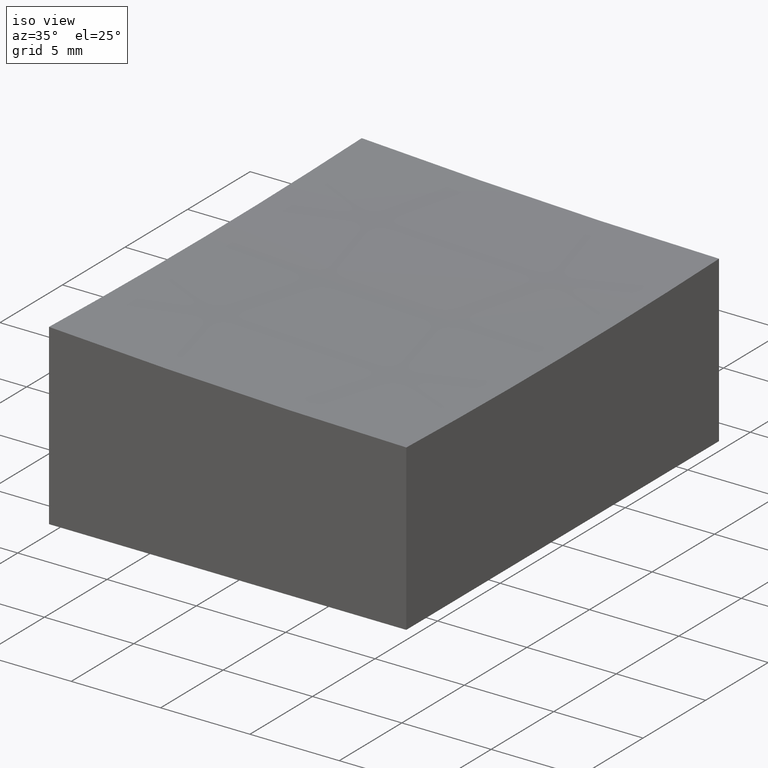
[diagram: clean part render]
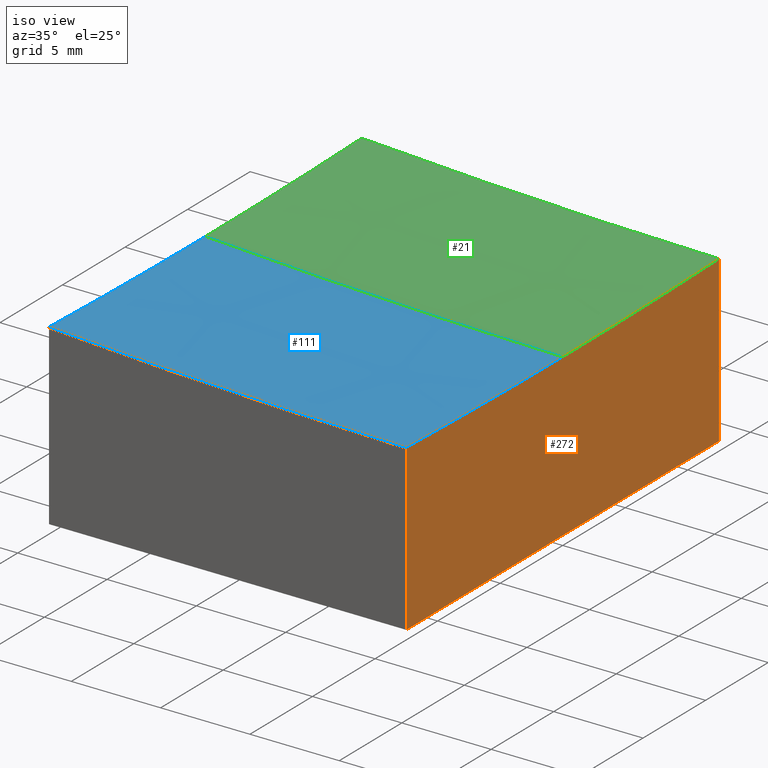
[diagram: same view with three faces highlighted in distinct colors, each labeled with its STEP entity id]
A machine part, iso view with three faces highlighted in distinct colors.
Their STEP definitions:

[orange] entity #272 — the highlighted planar face has unit normal (-1, 0, 0).
#4 = DIRECTION ( 'NONE',  ( -0.000000000000000000, -0.000000000000000000, -1.000000000000000000 ) ) ;
#7 = CARTESIAN_POINT ( 'NONE',  ( 10.00000000000000178, 12.50000000000000000, -10.00000000000000000 ) ) ;
#14 = ORIENTED_EDGE ( 'NONE', *, *, #164, .T. ) ;
#25 = DIRECTION ( 'NONE',  ( -1.000000000000000000, 0.000000000000000000, 0.000000000000000000 ) ) ;
#45 = DIRECTION ( 'NONE',  ( 0.000000000000000000, 0.000000000000000000, 1.000000000000000000 ) ) ;
#50 = CARTESIAN_POINT ( 'NONE',  ( 10.00000000000000178, -12.50000000000000000, 10.00000000000000000 ) ) ;
#53 = CARTESIAN_POINT ( 'NONE',  ( 10.00000000000000178, 0.000000000000000000, 399.0000000000000000 ) ) ;
#69 = DIRECTION ( 'NONE',  ( 0.000000000000000000, 0.000000000000000000, 1.000000000000000000 ) ) ;
#73 = EDGE_CURVE ( 'NONE', #267, #77, #173, .T. ) ;
#77 = VERTEX_POINT ( 'NONE', #7 ) ;
#80 = AXIS2_PLACEMENT_3D ( 'NONE', #140, #183, #69 ) ;
#98 = LINE ( 'NONE', #50, #126 ) ;
#101 = LINE ( 'NONE', #110, #276 ) ;
#110 = CARTESIAN_POINT ( 'NONE',  ( 10.00000000000000178, 12.50000000000000000, 10.00000000000000000 ) ) ;
#115 = ORIENTED_EDGE ( 'NONE', *, *, #73, .T. ) ;
#116 = CARTESIAN_POINT ( 'NONE',  ( 10.00000000000000178, 0.000000000000000000, 399.0000000000000000 ) ) ;
#117 = CARTESIAN_POINT ( 'NONE',  ( 10.00000000000000178, -12.50000000000000000, -0.7733733004237630659 ) ) ;
#122 = ORIENTED_EDGE ( 'NONE', *, *, #180, .T. ) ;
#126 = VECTOR ( 'NONE', #4, 1000.000000000000000 ) ;
#135 = FACE_OUTER_BOUND ( 'NONE', #153, .T. ) ;
#140 = CARTESIAN_POINT ( 'NONE',  ( 10.00000000000000178, -12.50000000000000000, 10.00000000000000000 ) ) ;
#144 = DIRECTION ( 'NONE',  ( 0.000000000000000000, 0.000000000000000000, 1.000000000000000000 ) ) ;
#151 = EDGE_CURVE ( 'NONE', #246, #77, #101, .T. ) ;
#153 = EDGE_LOOP ( 'NONE', ( #261, #14, #122, #245, #115 ) ) ;
#164 = EDGE_CURVE ( 'NONE', #246, #199, #169, .T. ) ;
#169 = CIRCLE ( 'NONE', #249, 399.9687487792014053 ) ;
#173 = LINE ( 'NONE', #256, #225 ) ;
#175 = VERTEX_POINT ( 'NONE', #117 ) ;
#180 = EDGE_CURVE ( 'NONE', #199, #175, #207, .T. ) ;
#183 = DIRECTION ( 'NONE',  ( -1.000000000000000000, 0.000000000000000000, 0.000000000000000000 ) ) ;
#199 = VERTEX_POINT ( 'NONE', #262 ) ;
#201 = DIRECTION ( 'NONE',  ( -1.000000000000000000, 0.000000000000000000, 0.000000000000000000 ) ) ;
#204 = DIRECTION ( 'NONE',  ( 0.000000000000000000, 1.000000000000000000, 0.000000000000000000 ) ) ;
#207 = CIRCLE ( 'NONE', #235, 399.9687487792014053 ) ;
#220 = DIRECTION ( 'NONE',  ( -0.000000000000000000, -0.000000000000000000, -1.000000000000000000 ) ) ;
#225 = VECTOR ( 'NONE', #204, 1000.000000000000000 ) ;
#235 = AXIS2_PLACEMENT_3D ( 'NONE', #53, #25, #45 ) ;
#236 = EDGE_CURVE ( 'NONE', #175, #267, #98, .T. ) ;
#239 = PLANE ( 'NONE',  #80 ) ;
#243 = CARTESIAN_POINT ( 'NONE',  ( 10.00000000000000178, -12.50000000000000000, -10.00000000000000000 ) ) ;
#245 = ORIENTED_EDGE ( 'NONE', *, *, #236, .T. ) ;
#246 = VERTEX_POINT ( 'NONE', #260 ) ;
#249 = AXIS2_PLACEMENT_3D ( 'NONE', #116, #201, #144 ) ;
#256 = CARTESIAN_POINT ( 'NONE',  ( 10.00000000000000178, -12.50000000000000000, -10.00000000000000000 ) ) ;
#260 = CARTESIAN_POINT ( 'NONE',  ( 10.00000000000000178, 12.50000000000000000, -0.7733733004237630659 ) ) ;
#261 = ORIENTED_EDGE ( 'NONE', *, *, #151, .F. ) ;
#262 = CARTESIAN_POINT ( 'NONE',  ( 10.00000000000000178, 0.000000000000000000, -0.9687487792014171095 ) ) ;
#267 = VERTEX_POINT ( 'NONE', #243 ) ;
#272 = ADVANCED_FACE ( 'NONE', ( #135 ), #239, .F. ) ;
#276 = VECTOR ( 'NONE', #220, 1000.000000000000000 ) ;

[blue] entity #111 — the highlighted spherical surface has radius 400 mm.
#2 = CARTESIAN_POINT ( 'NONE',  ( -9.999999999999996447, -12.50000000000000355, -0.02224248780913207213 ) ) ;
#11 = CARTESIAN_POINT ( 'NONE',  ( 15.00000000000005151, 0.000000000000000000, 399.0000000000000000 ) ) ;
#15 = CARTESIAN_POINT ( 'NONE',  ( -9.999999999999998224, 0.000000000000000000, 399.0000000000000000 ) ) ;
#24 = AXIS2_PLACEMENT_3D ( 'NONE', #224, #64, #233 ) ;
#25 = DIRECTION ( 'NONE',  ( -1.000000000000000000, 0.000000000000000000, 0.000000000000000000 ) ) ;
#27 = DIRECTION ( 'NONE',  ( 0.000000000000000000, -1.000000000000000000, 0.000000000000000000 ) ) ;
#32 = ORIENTED_EDGE ( 'NONE', *, *, #180, .F. ) ;
#45 = DIRECTION ( 'NONE',  ( 0.000000000000000000, 0.000000000000000000, 1.000000000000000000 ) ) ;
#49 = DIRECTION ( 'NONE',  ( -1.000000000000000000, 0.000000000000000000, 1.387778780781445676E-16 ) ) ;
#53 = CARTESIAN_POINT ( 'NONE',  ( 10.00000000000000178, 0.000000000000000000, 399.0000000000000000 ) ) ;
#54 = EDGE_CURVE ( 'NONE', #158, #223, #119, .T. ) ;
#61 = AXIS2_PLACEMENT_3D ( 'NONE', #11, #178, #49 ) ;
#64 = DIRECTION ( 'NONE',  ( -1.734723475976807094E-16, 1.000000000000000000, 0.000000000000000000 ) ) ;
#78 = DIRECTION ( 'NONE',  ( 1.000000000000000000, 0.000000000000000000, 0.000000000000000000 ) ) ;
#82 = EDGE_CURVE ( 'NONE', #223, #199, #125, .T. ) ;
#93 = AXIS2_PLACEMENT_3D ( 'NONE', #15, #78, #174 ) ;
#95 = ORIENTED_EDGE ( 'NONE', *, *, #82, .F. ) ;
#97 = EDGE_LOOP ( 'NONE', ( #95, #240, #196, #32 ) ) ;
#105 = FACE_OUTER_BOUND ( 'NONE', #97, .T. ) ;
#106 = EDGE_CURVE ( 'NONE', #175, #158, #149, .T. ) ;
#111 = ADVANCED_FACE ( 'NONE', ( #105 ), #132, .F. ) ;
#117 = CARTESIAN_POINT ( 'NONE',  ( 10.00000000000000178, -12.50000000000000000, -0.7733733004237630659 ) ) ;
#119 = CIRCLE ( 'NONE', #93, 399.2179855667827155 ) ;
#125 = CIRCLE ( 'NONE', #269, 399.9999999999999432 ) ;
#132 = SPHERICAL_SURFACE ( 'NONE', #61, 399.9999999999999432 ) ;
#149 = CIRCLE ( 'NONE', #24, 399.8046397929868476 ) ;
#154 = CARTESIAN_POINT ( 'NONE',  ( -9.999999999999996447, 0.000000000000000000, -0.2179855667827079735 ) ) ;
#158 = VERTEX_POINT ( 'NONE', #2 ) ;
#162 = DIRECTION ( 'NONE',  ( 0.000000000000000000, 0.000000000000000000, -1.000000000000000000 ) ) ;
#174 = DIRECTION ( 'NONE',  ( 0.000000000000000000, 0.000000000000000000, -1.000000000000000000 ) ) ;
#175 = VERTEX_POINT ( 'NONE', #117 ) ;
#178 = DIRECTION ( 'NONE',  ( 0.000000000000000000, 1.000000000000000000, -0.000000000000000000 ) ) ;
#180 = EDGE_CURVE ( 'NONE', #199, #175, #207, .T. ) ;
#182 = CARTESIAN_POINT ( 'NONE',  ( 15.00000000000005151, 0.000000000000000000, 399.0000000000000000 ) ) ;
#196 = ORIENTED_EDGE ( 'NONE', *, *, #106, .F. ) ;
#199 = VERTEX_POINT ( 'NONE', #262 ) ;
#207 = CIRCLE ( 'NONE', #235, 399.9687487792014053 ) ;
#223 = VERTEX_POINT ( 'NONE', #154 ) ;
#224 = CARTESIAN_POINT ( 'NONE',  ( 15.00000000000005329, -12.49999999999999822, 399.0000000000000000 ) ) ;
#233 = DIRECTION ( 'NONE',  ( -1.000000000000000000, -1.735571129814823690E-16, 0.000000000000000000 ) ) ;
#235 = AXIS2_PLACEMENT_3D ( 'NONE', #53, #25, #45 ) ;
#240 = ORIENTED_EDGE ( 'NONE', *, *, #54, .F. ) ;
#262 = CARTESIAN_POINT ( 'NONE',  ( 10.00000000000000178, 0.000000000000000000, -0.9687487792014171095 ) ) ;
#269 = AXIS2_PLACEMENT_3D ( 'NONE', #182, #27, #162 ) ;

[green] entity #21 — the highlighted spherical surface has radius 400 mm.
#21 = ADVANCED_FACE ( 'NONE', ( #33 ), #185, .F. ) ;
#27 = DIRECTION ( 'NONE',  ( 0.000000000000000000, -1.000000000000000000, 0.000000000000000000 ) ) ;
#30 = EDGE_CURVE ( 'NONE', #68, #246, #79, .T. ) ;
#33 = FACE_OUTER_BOUND ( 'NONE', #203, .T. ) ;
#48 = AXIS2_PLACEMENT_3D ( 'NONE', #137, #197, #142 ) ;
#68 = VERTEX_POINT ( 'NONE', #139 ) ;
#70 = ORIENTED_EDGE ( 'NONE', *, *, #164, .F. ) ;
#74 = DIRECTION ( 'NONE',  ( 0.000000000000000000, 1.000000000000000000, -0.000000000000000000 ) ) ;
#79 = CIRCLE ( 'NONE', #211, 399.8046397929868476 ) ;
#82 = EDGE_CURVE ( 'NONE', #223, #199, #125, .T. ) ;
#99 = DIRECTION ( 'NONE',  ( -1.000000000000000000, 0.000000000000000000, 1.387778780781445676E-16 ) ) ;
#113 = AXIS2_PLACEMENT_3D ( 'NONE', #242, #74, #99 ) ;
#116 = CARTESIAN_POINT ( 'NONE',  ( 10.00000000000000178, 0.000000000000000000, 399.0000000000000000 ) ) ;
#125 = CIRCLE ( 'NONE', #269, 399.9999999999999432 ) ;
#137 = CARTESIAN_POINT ( 'NONE',  ( -9.999999999999998224, 0.000000000000000000, 399.0000000000000000 ) ) ;
#139 = CARTESIAN_POINT ( 'NONE',  ( -10.00000000000000000, 12.49999999999999645, -0.02224248780913207213 ) ) ;
#141 = DIRECTION ( 'NONE',  ( 1.734723475976807094E-16, -1.000000000000000000, 0.000000000000000000 ) ) ;
#142 = DIRECTION ( 'NONE',  ( 0.000000000000000000, 0.000000000000000000, -1.000000000000000000 ) ) ;
#144 = DIRECTION ( 'NONE',  ( 0.000000000000000000, 0.000000000000000000, 1.000000000000000000 ) ) ;
#152 = CARTESIAN_POINT ( 'NONE',  ( 15.00000000000004974, 12.50000000000000178, 399.0000000000000000 ) ) ;
#154 = CARTESIAN_POINT ( 'NONE',  ( -9.999999999999996447, 0.000000000000000000, -0.2179855667827079735 ) ) ;
#162 = DIRECTION ( 'NONE',  ( 0.000000000000000000, 0.000000000000000000, -1.000000000000000000 ) ) ;
#164 = EDGE_CURVE ( 'NONE', #246, #199, #169, .T. ) ;
#169 = CIRCLE ( 'NONE', #249, 399.9687487792014053 ) ;
#179 = CIRCLE ( 'NONE', #48, 399.2179855667827155 ) ;
#182 = CARTESIAN_POINT ( 'NONE',  ( 15.00000000000005151, 0.000000000000000000, 399.0000000000000000 ) ) ;
#185 = SPHERICAL_SURFACE ( 'NONE', #113, 399.9999999999999432 ) ;
#197 = DIRECTION ( 'NONE',  ( 1.000000000000000000, 0.000000000000000000, 0.000000000000000000 ) ) ;
#199 = VERTEX_POINT ( 'NONE', #262 ) ;
#201 = DIRECTION ( 'NONE',  ( -1.000000000000000000, 0.000000000000000000, 0.000000000000000000 ) ) ;
#203 = EDGE_LOOP ( 'NONE', ( #227, #205, #70, #218 ) ) ;
#205 = ORIENTED_EDGE ( 'NONE', *, *, #82, .T. ) ;
#211 = AXIS2_PLACEMENT_3D ( 'NONE', #152, #141, #221 ) ;
#218 = ORIENTED_EDGE ( 'NONE', *, *, #30, .F. ) ;
#221 = DIRECTION ( 'NONE',  ( 1.000000000000000000, 1.735571129814823690E-16, 0.000000000000000000 ) ) ;
#223 = VERTEX_POINT ( 'NONE', #154 ) ;
#227 = ORIENTED_EDGE ( 'NONE', *, *, #228, .F. ) ;
#228 = EDGE_CURVE ( 'NONE', #223, #68, #179, .T. ) ;
#242 = CARTESIAN_POINT ( 'NONE',  ( 15.00000000000005151, 0.000000000000000000, 399.0000000000000000 ) ) ;
#246 = VERTEX_POINT ( 'NONE', #260 ) ;
#249 = AXIS2_PLACEMENT_3D ( 'NONE', #116, #201, #144 ) ;
#260 = CARTESIAN_POINT ( 'NONE',  ( 10.00000000000000178, 12.50000000000000000, -0.7733733004237630659 ) ) ;
#262 = CARTESIAN_POINT ( 'NONE',  ( 10.00000000000000178, 0.000000000000000000, -0.9687487792014171095 ) ) ;
#269 = AXIS2_PLACEMENT_3D ( 'NONE', #182, #27, #162 ) ;